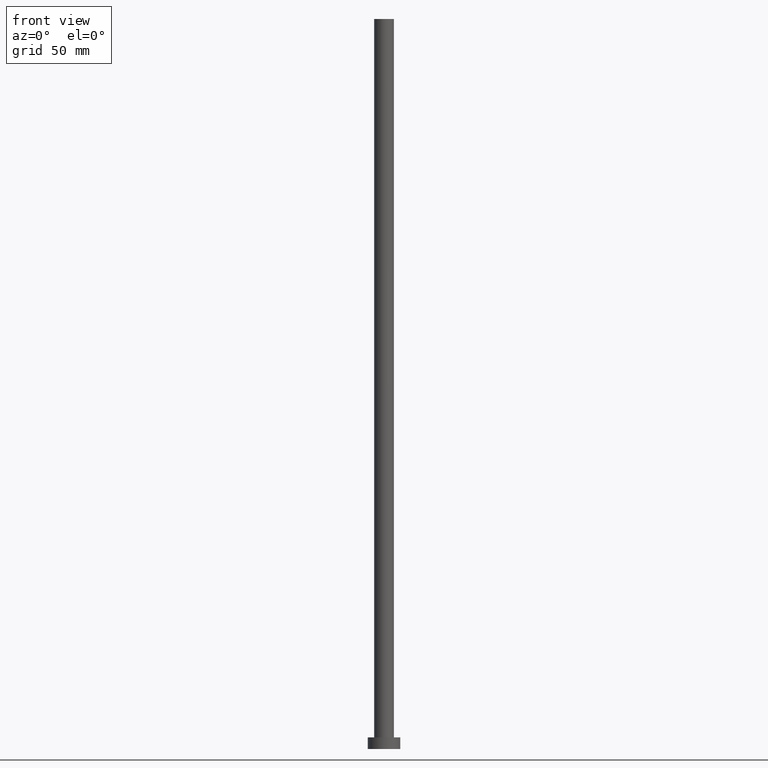
[diagram: clean part render]
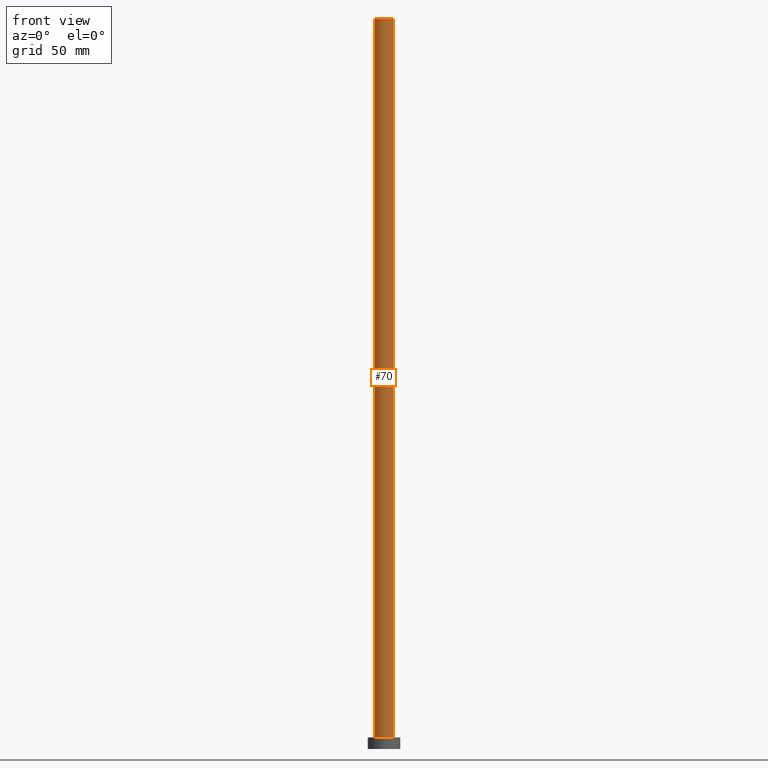
[diagram: same view with one face highlighted and labeled with its STEP entity id]
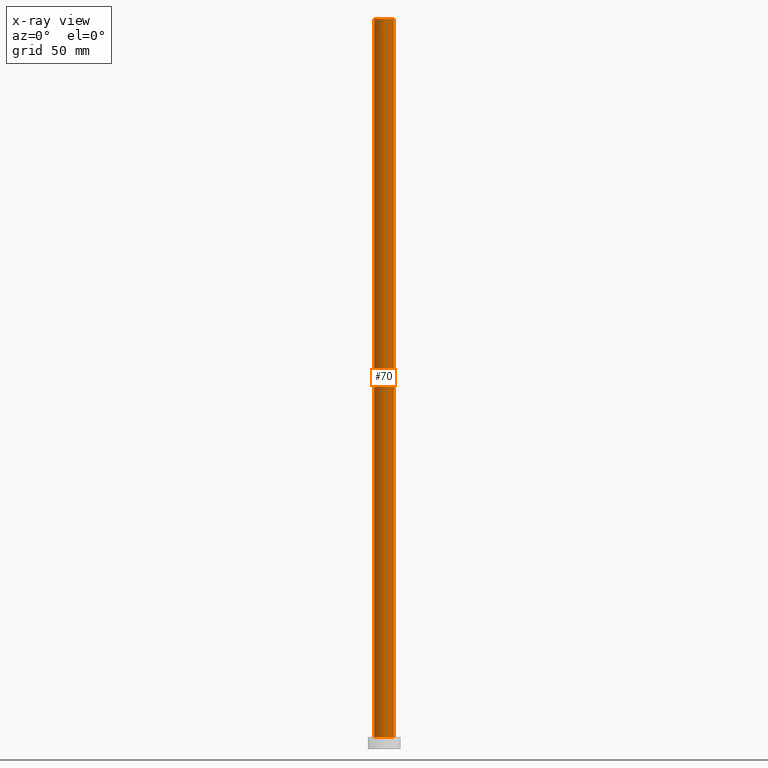
[diagram: x-ray of the same camera — body ghosted, the highlighted face saturated]
A machine part, front view. The second image highlights one B-rep face of the part: STEP entity #70.
The next image is the same camera in x-ray: the body ghosted, the highlighted face saturated — about 0% of this face is hidden behind the body in this view.
In plain terms, the highlighted cylindrical surface (edge-blend (fillet) strip) has radius 4.25 mm, axis along (-0, -0, -1).
Its self-contained STEP definition (entity closure, byte-faithful):
#12 = VERTEX_POINT ( 'NONE', #51 ) ;
#33 = AXIS2_PLACEMENT_3D ( 'NONE', #124, #85, #125 ) ;
#39 = AXIS2_PLACEMENT_3D ( 'NONE', #180, #132, #199 ) ;
#40 = CARTESIAN_POINT ( 'NONE',  ( -4.250000000000000000, 0.000000000000000000, 5.000000000000000000 ) ) ;
#50 = VECTOR ( 'NONE', #134, 1000.000000000000000 ) ;
#51 = CARTESIAN_POINT ( 'NONE',  ( 4.250000000000000000, 5.204748896376250699E-16, 315.0000000000000000 ) ) ;
#53 = DIRECTION ( 'NONE',  ( 1.000000000000000000, 0.000000000000000000, 0.000000000000000000 ) ) ;
#57 = AXIS2_PLACEMENT_3D ( 'NONE', #158, #155, #53 ) ;
#64 = ORIENTED_EDGE ( 'NONE', *, *, #170, .T. ) ;
#66 = CYLINDRICAL_SURFACE ( 'NONE', #33, 4.250000000000000000 ) ;
#70 = ADVANCED_FACE ( 'NONE', ( #166 ), #66, .T. ) ;
#85 = DIRECTION ( 'NONE',  ( -0.000000000000000000, -0.000000000000000000, -1.000000000000000000 ) ) ;
#104 = CIRCLE ( 'NONE', #39, 4.250000000000000000 ) ;
#106 = CARTESIAN_POINT ( 'NONE',  ( 4.250000000000000000, 5.204748896376250699E-16, 315.0000000000000000 ) ) ;
#107 = EDGE_LOOP ( 'NONE', ( #185, #117, #64, #203 ) ) ;
#109 = VECTOR ( 'NONE', #176, 1000.000000000000000 ) ;
#117 = ORIENTED_EDGE ( 'NONE', *, *, #133, .F. ) ;
#124 = CARTESIAN_POINT ( 'NONE',  ( 0.000000000000000000, 0.000000000000000000, 315.0000000000000000 ) ) ;
#125 = DIRECTION ( 'NONE',  ( -1.000000000000000000, 0.000000000000000000, 0.000000000000000000 ) ) ;
#128 = CARTESIAN_POINT ( 'NONE',  ( -4.250000000000000000, 0.000000000000000000, 315.0000000000000000 ) ) ;
#132 = DIRECTION ( 'NONE',  ( 0.000000000000000000, 0.000000000000000000, 1.000000000000000000 ) ) ;
#133 = EDGE_CURVE ( 'NONE', #135, #12, #240, .T. ) ;
#134 = DIRECTION ( 'NONE',  ( -0.000000000000000000, -0.000000000000000000, -1.000000000000000000 ) ) ;
#135 = VERTEX_POINT ( 'NONE', #241 ) ;
#140 = EDGE_CURVE ( 'NONE', #12, #181, #174, .T. ) ;
#153 = CARTESIAN_POINT ( 'NONE',  ( 4.250000000000000000, 5.204748896376250699E-16, 5.000000000000000000 ) ) ;
#155 = DIRECTION ( 'NONE',  ( 0.000000000000000000, 0.000000000000000000, 1.000000000000000000 ) ) ;
#158 = CARTESIAN_POINT ( 'NONE',  ( 0.000000000000000000, 0.000000000000000000, 315.0000000000000000 ) ) ;
#166 = FACE_OUTER_BOUND ( 'NONE', #107, .T. ) ;
#170 = EDGE_CURVE ( 'NONE', #135, #198, #221, .T. ) ;
#174 = LINE ( 'NONE', #106, #109 ) ;
#176 = DIRECTION ( 'NONE',  ( -0.000000000000000000, -0.000000000000000000, -1.000000000000000000 ) ) ;
#180 = CARTESIAN_POINT ( 'NONE',  ( 0.000000000000000000, 0.000000000000000000, 5.000000000000000000 ) ) ;
#181 = VERTEX_POINT ( 'NONE', #153 ) ;
#185 = ORIENTED_EDGE ( 'NONE', *, *, #140, .F. ) ;
#198 = VERTEX_POINT ( 'NONE', #40 ) ;
#199 = DIRECTION ( 'NONE',  ( 1.000000000000000000, 0.000000000000000000, 0.000000000000000000 ) ) ;
#203 = ORIENTED_EDGE ( 'NONE', *, *, #220, .T. ) ;
#220 = EDGE_CURVE ( 'NONE', #198, #181, #104, .T. ) ;
#221 = LINE ( 'NONE', #128, #50 ) ;
#240 = CIRCLE ( 'NONE', #57, 4.250000000000000000 ) ;
#241 = CARTESIAN_POINT ( 'NONE',  ( -4.250000000000000000, 0.000000000000000000, 315.0000000000000000 ) ) ;